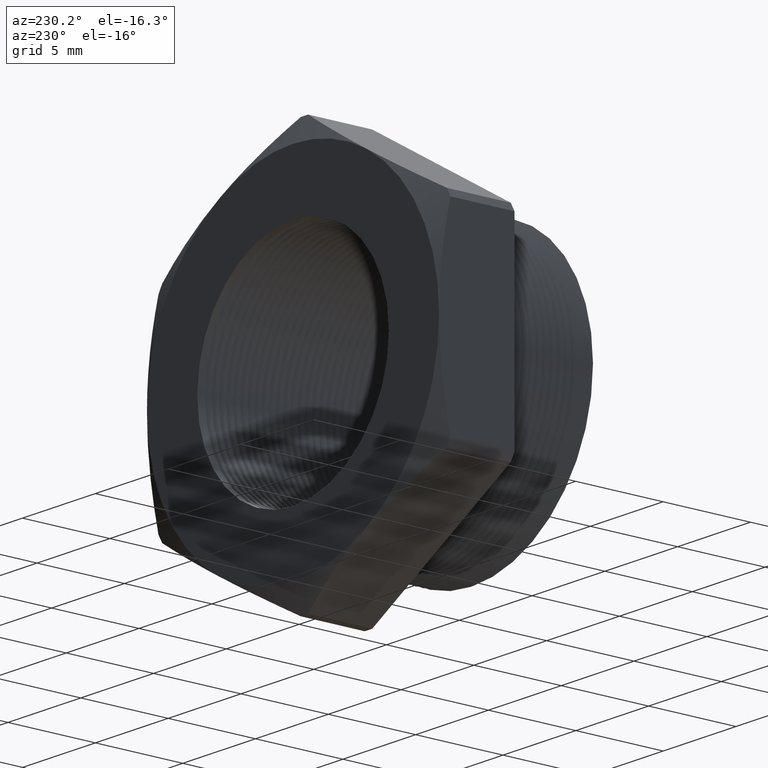
[diagram: clean part render]
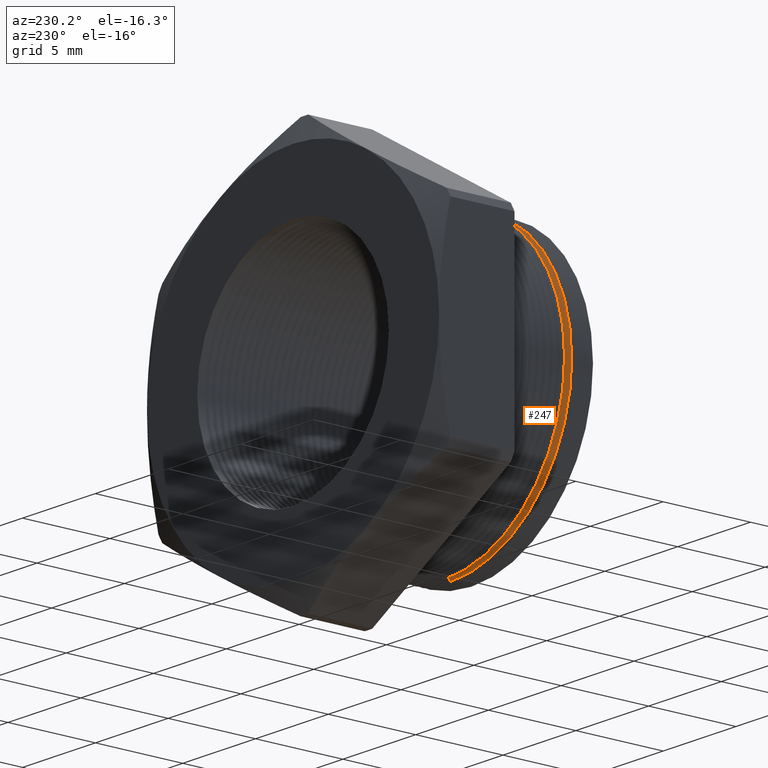
[diagram: same view with one face highlighted and labeled with its STEP entity id]
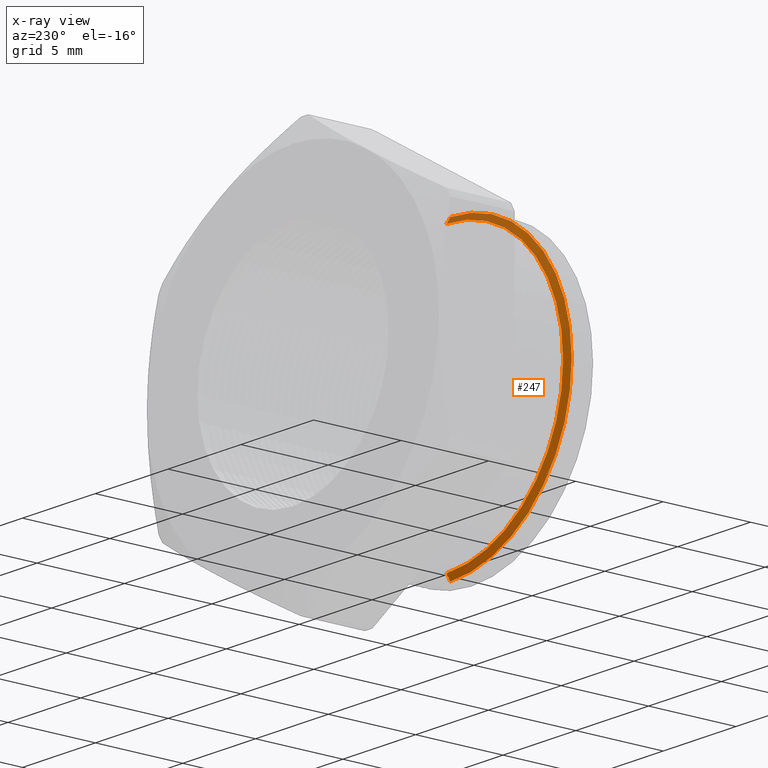
[diagram: x-ray of the same camera — body ghosted, the highlighted face saturated]
A machine part, auxiliary view. The second image highlights one B-rep face of the part: STEP entity #247.
The next image is the same camera in x-ray: the body ghosted, the highlighted face saturated — about 12% of this face is hidden behind the body in this view.
In plain terms, the highlighted conical surface has half-angle 60 deg.
Its self-contained STEP definition (entity closure, byte-faithful):
#212 = EDGE_LOOP ( 'NONE', ( #348, #405, #344, #602 ) ) ;
#247 = ADVANCED_FACE ( 'NONE', ( #658 ), #656, .T. ) ;
#344 = ORIENTED_EDGE ( 'NONE', *, *, #4987, .T. ) ;
#348 = ORIENTED_EDGE ( 'NONE', *, *, #4984, .F. ) ;
#405 = ORIENTED_EDGE ( 'NONE', *, *, #5223, .T. ) ;
#602 = ORIENTED_EDGE ( 'NONE', *, *, #711, .T. ) ;
#652 = DIRECTION ( 'NONE',  ( 0.0000000000000000000, 0.0000000000000000000, -1.000000000000000000 ) ) ;
#653 = DIRECTION ( 'NONE',  ( 0.0000000000000000000, -1.000000000000000000, 0.0000000000000000000 ) ) ;
#654 = CARTESIAN_POINT ( 'NONE',  ( 0.0000000000000000000, 0.06150724481000893800, 0.0000000000000000000 ) ) ;
#655 = AXIS2_PLACEMENT_3D ( 'NONE', #654, #653, #652 ) ;
#656 = CONICAL_SURFACE ( 'NONE', #655, 0.3150000000000000000, 1.047197551196596700 ) ;
#658 = FACE_OUTER_BOUND ( 'NONE', #212, .T. ) ;
#711 = EDGE_CURVE ( 'NONE', #4836, #4819, #739, .T. ) ;
#731 = DIRECTION ( 'NONE',  ( 0.0000000000000000000, 0.0000000000000000000, 1.000000000000000000 ) ) ;
#732 = DIRECTION ( 'NONE',  ( -0.0000000000000000000, 1.000000000000000000, -0.0000000000000000000 ) ) ;
#733 = CARTESIAN_POINT ( 'NONE',  ( 0.0000000000000000000, 0.05355489058294799600, 0.0000000000000000000 ) ) ;
#734 = AXIS2_PLACEMENT_3D ( 'NONE', #733, #732, #731 ) ;
#739 = CIRCLE ( 'NONE', #734, 0.3287738815610546400 ) ;
#1807 = CARTESIAN_POINT ( 'NONE',  ( 0.0000000000000000000, 0.05355489058294799600, -0.3287738815610546400 ) ) ;
#1818 = CARTESIAN_POINT ( 'NONE',  ( 4.026318816969966200E-017, 0.05355489058294799600, 0.3287738815610546400 ) ) ;
#2144 = DIRECTION ( 'NONE',  ( 0.0000000000000000000, -0.5000000000000008900, -0.8660254037844380400 ) ) ;
#2145 = VECTOR ( 'NONE', #2144, 39.37007874015748100 ) ;
#2146 = CARTESIAN_POINT ( 'NONE',  ( 0.0000000000000000000, 0.06150724481000893800, -0.3150000000000000000 ) ) ;
#2147 = LINE ( 'NONE', #2146, #2145 ) ;
#2148 = DIRECTION ( 'NONE',  ( 1.060575238724906300E-016, -0.5000000000000008900, 0.8660254037844380400 ) ) ;
#2149 = VECTOR ( 'NONE', #2148, 39.37007874015748100 ) ;
#2150 = CARTESIAN_POINT ( 'NONE',  ( 3.857637417314162700E-017, 0.06150724481000893800, 0.3150000000000000000 ) ) ;
#2151 = LINE ( 'NONE', #2150, #2149 ) ;
#2152 = CARTESIAN_POINT ( 'NONE',  ( 3.857637417314162700E-017, 0.06150724481000893800, 0.3150000000000000000 ) ) ;
#2153 = CARTESIAN_POINT ( 'NONE',  ( 0.0000000000000000000, 0.06150724481000893800, -0.3150000000000000000 ) ) ;
#2584 = CARTESIAN_POINT ( 'NONE',  ( 0.0000000000000000000, 0.06150724481000893800, 0.0000000000000000000 ) ) ;
#2645 = DIRECTION ( 'NONE',  ( 0.0000000000000000000, 0.0000000000000000000, -1.000000000000000000 ) ) ;
#2646 = DIRECTION ( 'NONE',  ( 0.0000000000000000000, -1.000000000000000000, 0.0000000000000000000 ) ) ;
#2647 = AXIS2_PLACEMENT_3D ( 'NONE', #2584, #2646, #2645 ) ;
#2648 = CIRCLE ( 'NONE', #2647, 0.3150000000000000000 ) ;
#4819 = VERTEX_POINT ( 'NONE', #1818 ) ;
#4836 = VERTEX_POINT ( 'NONE', #1807 ) ;
#4981 = VERTEX_POINT ( 'NONE', #2153 ) ;
#4982 = VERTEX_POINT ( 'NONE', #2152 ) ;
#4984 = EDGE_CURVE ( 'NONE', #4982, #4819, #2151, .T. ) ;
#4987 = EDGE_CURVE ( 'NONE', #4981, #4836, #2147, .T. ) ;
#5223 = EDGE_CURVE ( 'NONE', #4982, #4981, #2648, .T. ) ;